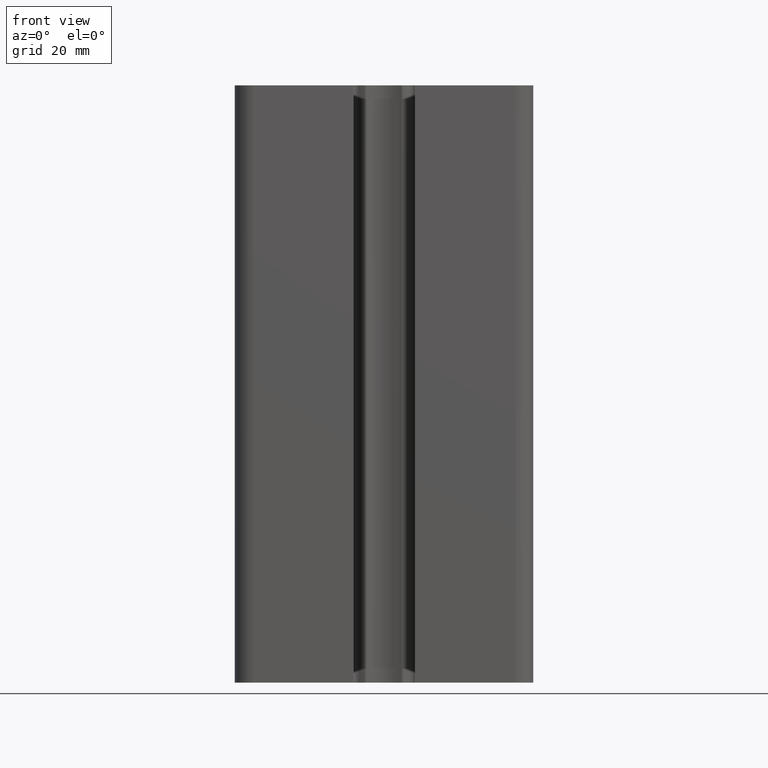
[diagram: clean part render]
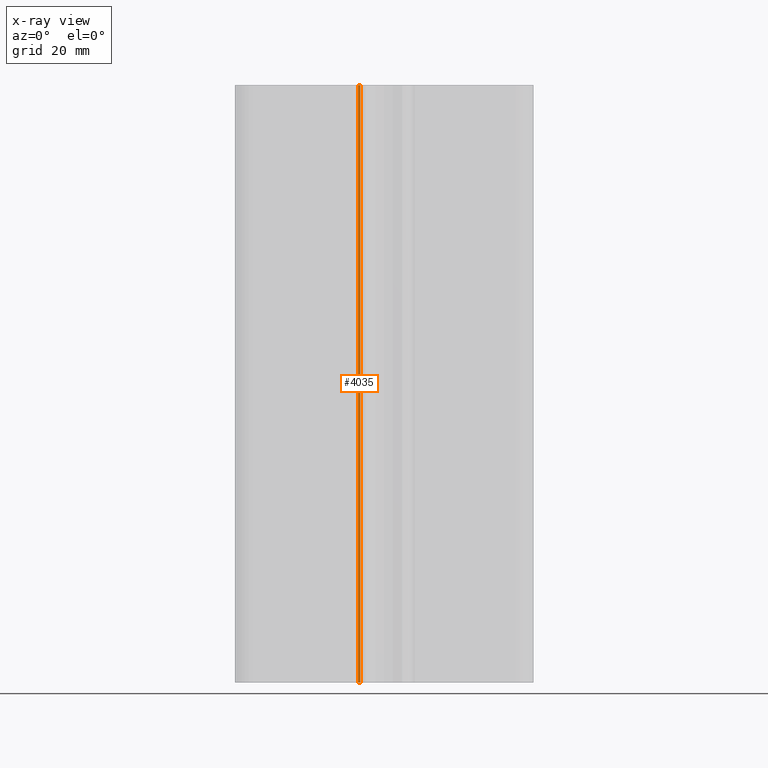
[diagram: x-ray — body ghosted, one internal face saturated and labeled with its STEP entity id]
A machine part, front view, then the same camera in x-ray: the body is ghosted and one INTERNAL B-rep face — a face not visible from any outside direction — is saturated and labeled: STEP entity #4035.
In plain terms, the highlighted cylindrical surface (edge-blend (fillet) strip) has radius 0.3 mm, axis along (0, 0, 1).
Its self-contained STEP definition (entity closure, byte-faithful):
#177=FACE_OUTER_BOUND('',#387,.T.);
#387=EDGE_LOOP('',(#2821,#2822,#2823,#2824));
#640=LINE('',#6219,#1032);
#642=LINE('',#6225,#1034);
#1032=VECTOR('',#4964,100.);
#1034=VECTOR('',#4970,100.);
#1423=CIRCLE('',#4322,0.300000000000001);
#1424=CIRCLE('',#4323,0.300000000000001);
#1681=VERTEX_POINT('',#6216);
#1682=VERTEX_POINT('',#6218);
#1683=VERTEX_POINT('',#6222);
#1684=VERTEX_POINT('',#6224);
#2146=EDGE_CURVE('',#1681,#1682,#640,.T.);
#2148=EDGE_CURVE('',#1683,#1681,#1423,.T.);
#2149=EDGE_CURVE('',#1683,#1684,#642,.T.);
#2150=EDGE_CURVE('',#1682,#1684,#1424,.T.);
#2821=ORIENTED_EDGE('',*,*,#2148,.F.);
#2822=ORIENTED_EDGE('',*,*,#2149,.T.);
#2823=ORIENTED_EDGE('',*,*,#2150,.F.);
#2824=ORIENTED_EDGE('',*,*,#2146,.F.);
#3906=CYLINDRICAL_SURFACE('',#4321,0.300000000000001);
#4035=ADVANCED_FACE('',(#177),#3906,.T.);
#4321=AXIS2_PLACEMENT_3D('',#6221,#4966,#4967);
#4322=AXIS2_PLACEMENT_3D('',#6223,#4968,#4969);
#4323=AXIS2_PLACEMENT_3D('',#6226,#4971,#4972);
#4964=DIRECTION('',(0.,0.,1.));
#4966=DIRECTION('center_axis',(0.,0.,1.));
#4967=DIRECTION('ref_axis',(0.382683771810062,0.923879391908503,0.));
#4968=DIRECTION('center_axis',(0.,0.,-1.));
#4969=DIRECTION('ref_axis',(0.382683771810062,0.923879391908503,0.));
#4970=DIRECTION('',(0.,0.,1.));
#4971=DIRECTION('center_axis',(0.,0.,1.));
#4972=DIRECTION('ref_axis',(0.382683771810062,0.923879391908503,0.));
#6216=CARTESIAN_POINT('',(-4.33008692386998,2.76773391053207,0.));
#6218=CARTESIAN_POINT('',(-4.33008692386998,2.76773391053207,100.));
#6219=CARTESIAN_POINT('',(-4.33008692386998,2.76773391053207,0.));
#6221=CARTESIAN_POINT('Origin',(-4.21528179232696,3.04489772810462,0.));
#6222=CARTESIAN_POINT('',(-3.97209252246566,2.8692304886309,0.));
#6223=CARTESIAN_POINT('Origin',(-4.21528179232696,3.04489772810462,0.));
#6224=CARTESIAN_POINT('',(-3.97209252246566,2.8692304886309,100.));
#6225=CARTESIAN_POINT('',(-3.97209252246566,2.8692304886309,0.));
#6226=CARTESIAN_POINT('Origin',(-4.21528179232696,3.04489772810462,100.));